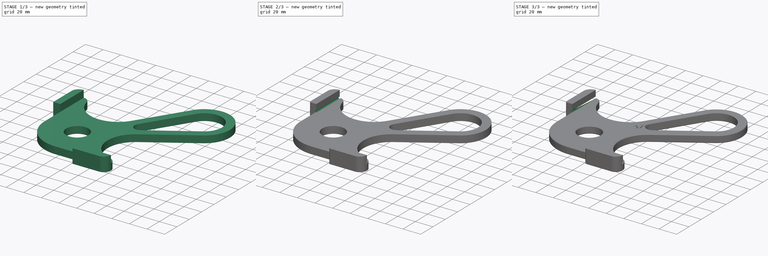
[diagram: build sequence overview — one tinted view per stage of 3, left to right]
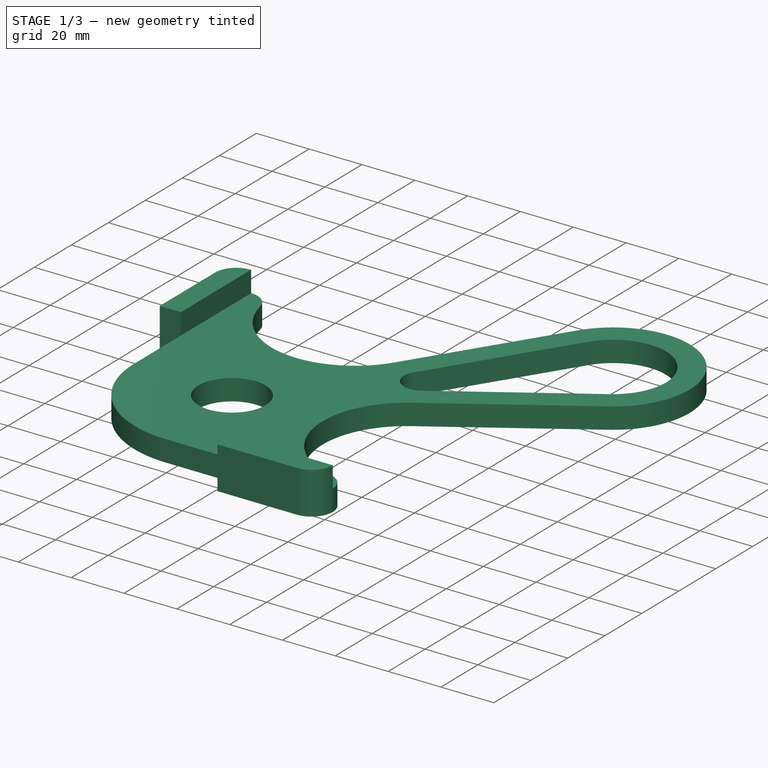
[diagram: stage 1 of 3 — iso view after this stage's code; geometry added in this stage tinted green]
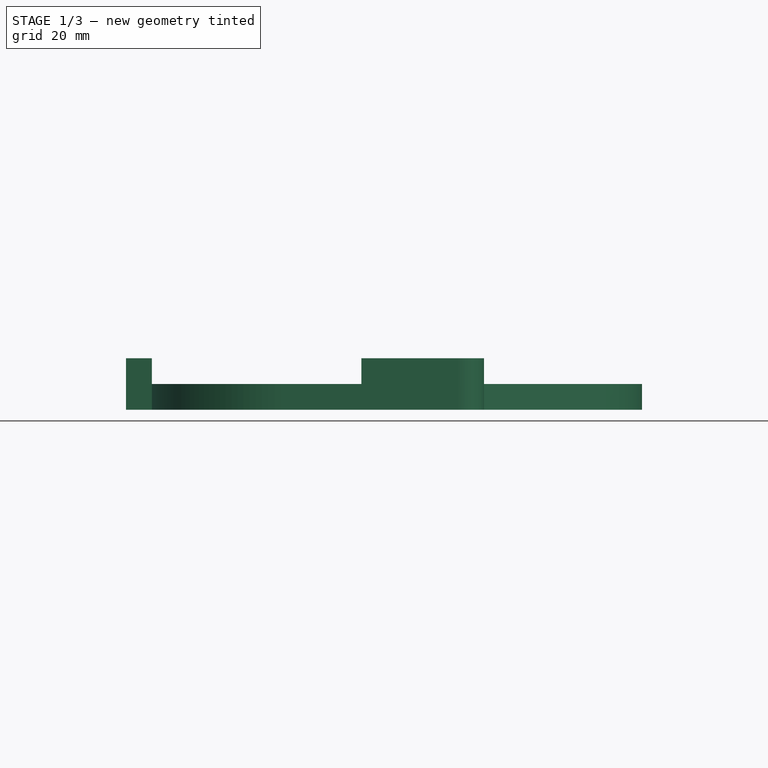
[diagram: stage 1 of 3 — front view after this stage's code; geometry added in this stage tinted green]
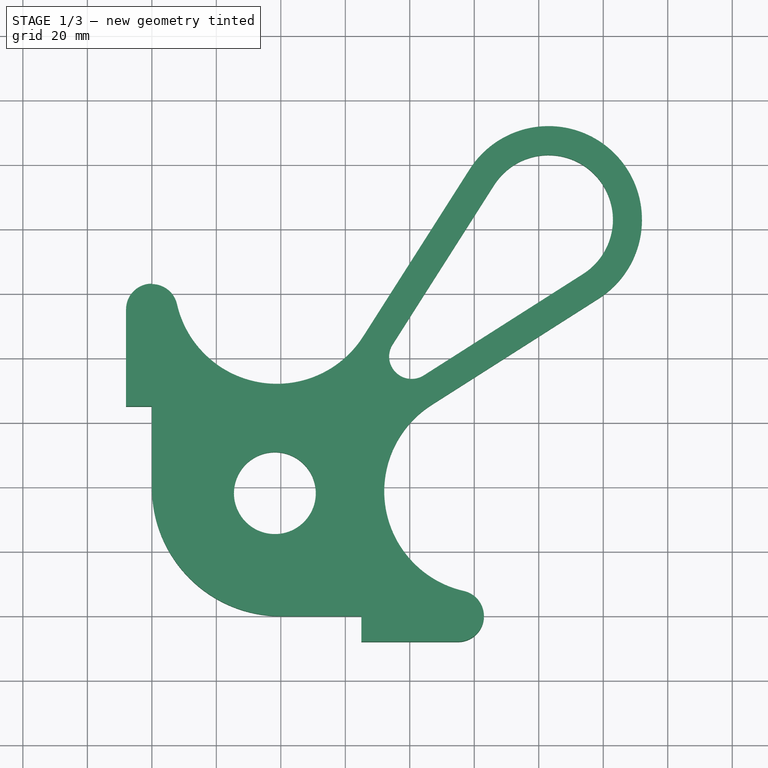
[diagram: stage 1 of 3 — top view after this stage's code; geometry added in this stage tinted green]
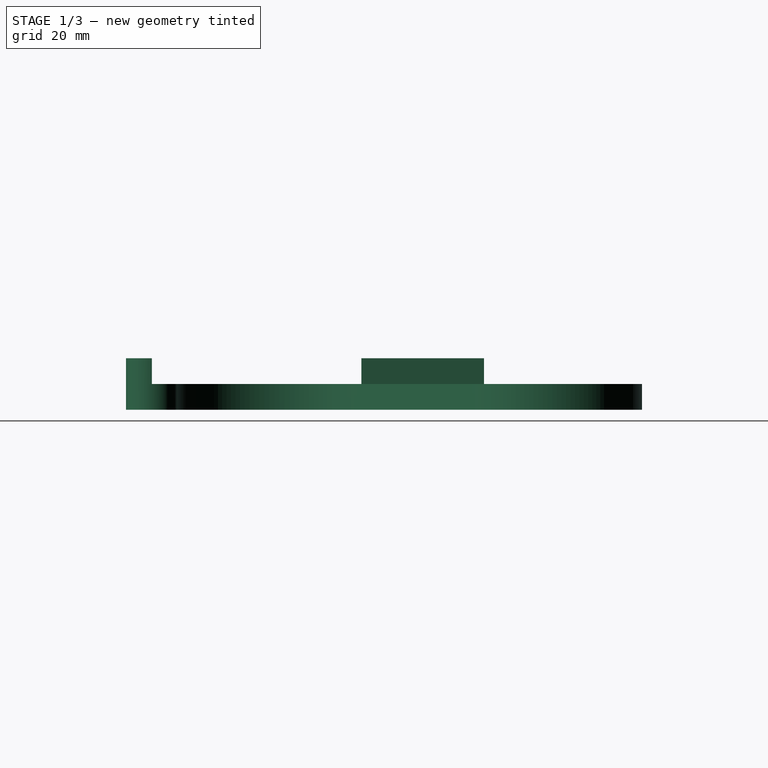
[diagram: stage 1 of 3 — right view after this stage's code; geometry added in this stage tinted green]
FCSTD DOCUMENT  (FreeCAD 1.0R39109 (Git))
Label: radius jig
License: All rights reserved
LicenseURL: http://en.wikipedia.org/wiki/All_rights_reserved
objects: Sketcher::SketchObject×3, PartDesign::Pad×2, PartDesign::Pocket×2, App::FeaturePython×1, Part::Feature×1, PartDesign::PolarPattern×1, PartDesign::Fillet×1, Part::Part2DObjectPython×1, PartDesign::Chamfer×1, PartDesign::Body×1
note: 29 computed .brp shape members not serialized (recipe doc carries the construction recipe); baked Part::Feature solids carry a one-line shape summary decoded from their .brp

FEATURE [Sketcher::SketchObject] Sketch
  ArcFitTolerance = 1e-06
  AttachmentSupport = -> [XY_Plane]
  FullyConstrained = true
  MakeInternals = false
  MapMode = 5
  expr: Constraints[15] = dd.EdgeReference
  expr: Constraints[36] = dd.LandingZone
  expr: Constraints[37] = dd.CornerRadius
  expr: Constraints[40] = dd.HandleLength
  expr: Constraints[41] = dd.EdgeReferenceRadius
  sketch-geometry (24):
    g0: LineSegment StartX=0 StartY=65 StartZ=0 EndX=0 EndY=40 EndZ=0
    g1: LineSegment StartX=40 StartY=0 StartZ=0 EndX=65 EndY=0 EndZ=0
    g2: ArcOfCircle CenterX=40 CenterY=40 CenterZ=0 NormalX=0 NormalY=0 NormalZ=1 AngleXU=0 Radius=40 StartAngle=3.14159 EndAngle=4.71239
    g3: GeomPoint [constr] X=0 Y=0 Z=0
    g4: LineSegment StartX=-8 StartY=65 StartZ=0 EndX=-8 EndY=95 EndZ=0
    g5: LineSegment StartX=65.5562 StartY=86.7694 StartZ=0 EndX=98.5492 EndY=138.585 EndZ=0
    g6: ArcOfCircle CenterX=123.01 CenterY=123.01 CenterZ=0 NormalX=0 NormalY=0 NormalZ=1 AngleXU=0 Radius=28.9982 StartAngle=5.27939 EndAngle=8.85778
    g7: LineSegment StartX=138.585 StartY=98.5492 StartZ=0 EndX=86.7694 EndY=65.5562 EndZ=0
    g8: LineSegment StartX=95 StartY=-8 StartZ=0 EndX=65 EndY=-8 EndZ=0
    g9: LineSegment StartX=65 StartY=-8 StartZ=0 EndX=65 EndY=0 EndZ=0
    g10: LineSegment [constr] StartX=38.1569 StartY=38.1569 StartZ=0 EndX=123.01 EndY=123.01 EndZ=0
    g11: ArcOfCircle CenterX=103.827 CenterY=38.7668 CenterZ=0 NormalX=0 NormalY=0 NormalZ=1 AngleXU=0 Radius=31.7591 StartAngle=2.1378 EndAngle=4.4885
    g12: ArcOfCircle CenterX=38.7668 CenterY=103.827 CenterZ=0 NormalX=0 NormalY=0 NormalZ=1 AngleXU=0 Radius=31.7591 StartAngle=3.36548 EndAngle=5.71619
    g13: ArcOfCircle CenterX=95 CenterY=2e-16 CenterZ=0 NormalX=0 NormalY=0 NormalZ=1 AngleXU=0 Radius=8 StartAngle=4.71239 EndAngle=7.6301
    g14: ArcOfCircle CenterX=-2e-16 CenterY=95 CenterZ=0 NormalX=0 NormalY=0 NormalZ=1 AngleXU=0 Radius=8 StartAngle=0.223886 EndAngle=3.14159
    g15: LineSegment StartX=-8 StartY=65 StartZ=0 EndX=0 EndY=65 EndZ=0
    g16: ArcOfCircle CenterX=123.01 CenterY=123.01 CenterZ=0 NormalX=0 NormalY=0 NormalZ=1 AngleXU=0 Radius=20 StartAngle=5.27939 EndAngle=8.85778
    g17: ArcOfCircle CenterX=80.5833 CenterY=80.5833 CenterZ=0 NormalX=0 NormalY=0 NormalZ=1 AngleXU=0 Radius=7 StartAngle=2.57459 EndAngle=5.27939
    g18: LineSegment StartX=133.752 StartY=106.139 StartZ=0 EndX=84.343 EndY=74.6786 EndZ=0
    g19: LineSegment StartX=106.139 StartY=133.752 StartZ=0 EndX=74.6786 EndY=84.343 EndZ=0
    g20: Circle CenterX=38.1569 CenterY=38.1569 CenterZ=0 NormalX=0 NormalY=0 NormalZ=1 AngleXU=0 Radius=12.7
    g21: LineSegment [constr] StartX=7.80034 StartY=96.7762 StartZ=0 EndX=123.01 EndY=123.01 EndZ=0
    g22: LineSegment [constr] StartX=65 StartY=0 StartZ=0 EndX=3.4e-15 EndY=65 EndZ=0
    g23: LineSegment [constr] StartX=38.1569 StartY=38.1569 StartZ=0 EndX=32.5 EndY=32.5 EndZ=0
  constraints (57):
    c: Vertical(g0)
    c: Horizontal(g1)
    c: PointOnObject(g3,g1)
    c: PointOnObject(g3,g0)
    c: Tangent(g1,g2) = -1.5708
    c: Tangent(g0,g2) = -1.5708
    c: Equal(g1,g0)
    c: Vertical(g4)
    c: Tangent(g5,g6) = 1.5708
    c: Tangent(g6,g7) = 1.5708
    c: Horizontal(g8)
    c: Coincident(g8,g9)
    c: Coincident(g9,g1)
    c: Vertical(g9)
    c: Equal(g4,g8)
    c: DistanceX(g8,g8) = 30
    c: Coincident(g10,g6)
    c: DistanceY(g9,g9) = 8
    c: Tangent(g12,g5) = -1.5708
    c: Symmetric(g5,g7,g10)
    c: Tangent(g14,g12) = 1.5708
    c: Tangent(g14,g4) = 1.5708
    c: Tangent(g13,g8) = 1.5708
    c: Coincident(g3,g-1)
    c: PointOnObject(g3,g10)
    c: Coincident(g15,g4)
    c: Coincident(g15,g0)
    c: Horizontal(g15)
    c: Tangent(g16,g18) = 1.5708
    c: Tangent(g16,g19) = -1.5708
    c: Tangent(g17,g18) = 1.5708
    c: Tangent(g17,g19) = -1.5708
    c: Coincident(g16,g6)
    c: Diameter(g17) = 14
    c: Symmetric(g10,g6,g17)
    c: Parallel(g18,g7)
    c: DistanceX(g1,g1) = 25
    c: Radius(g2) = 40
    c: Distance(g7,g5) = 30
    c: Diameter(g16) = 40
    c: Distance(g10) = 120
    c: Radius(g13) = 8
    c: Coincident(g20,g10)
    c: Diameter(g20) = 25.4
    c: Tangent(g7,g11) = -1.5708
    c: Tangent(g13,g11) = 1.5708
    c: Equal(g15,g9)
    c: Equal(g13,g14)
    c: Coincident(g21,g12)
    c: Coincident(g21,g6)
    c: PointOnObject(g12,g21)
    c: Coincident(g22,g1)
    c: Coincident(g22,g0)
    c: Perpendicular(g22,g10)
    c: Coincident(g23,g10)
    c: Symmetric(g22,g22,g23)
    c: Distance(g23) = 8
FEATURE [App::FeaturePython] dd  # WARN: FeaturePython — macro-defined, semantics opaque (R4)
  CornerRadius = 40
  DynamicData = Created with DynamicData (v2.68) workbench. | This is a simple container object built | for holding custom properties.
  EdgeReference = 30
  EdgeReferenceRadius = 8
  HandleLength = 120
  LandingZone = 25
  SizeText = 1/4"
  TextOffset = 69
  TextX = 45
  TextY = 41
  Thickness = 8
  expr: TextOffset = LandingZone + CornerRadius + 4
FEATURE [Part::Feature] Part__Feature  label="(Unsaved)"
  Placement = pos=(180,0,0) rot=(0,0,1;0rad)
  shape: bbox 150.5 x 150.5 x 14.41 mm, 168 faces (baked)
FEATURE [PartDesign::Pad] Pad
  Direction = (0,0,1)
  Length = 8
  Length2 = 10
  Profile = -> Sketch
  ReferenceAxis = -> Sketch [N_Axis]
  Refine = true
  Suppressed = false
  Type = 0
  expr: Length = dd.Thickness
FEATURE [Sketcher::SketchObject] Sketch001
  ArcFitTolerance = 1e-06
  AttachmentSupport = -> [Pad]
  ExternalGeometry = -> [Pad]
  FullyConstrained = true
  MakeInternals = false
  MapMode = 5
  Placement = pos=(0,0,8) rot=(0,0,1;0rad)
  expr: Constraints[17] = dd.EdgeReference + dd.EdgeReferenceRadius
  expr: Constraints[18] = dd.EdgeReference + dd.EdgeReferenceRadius
  sketch-geometry (8):
    g0: LineSegment StartX=0 StartY=65 StartZ=0 EndX=-8 EndY=65 EndZ=0
    g1: LineSegment StartX=-8 StartY=65 StartZ=0 EndX=-8 EndY=95 EndZ=0
    g2: ArcOfCircle CenterX=6e-15 CenterY=95 CenterZ=0 NormalX=0 NormalY=0 NormalZ=1 AngleXU=0 Radius=8 StartAngle=1.5708 EndAngle=3.14159
    g3: LineSegment StartX=0 StartY=103 StartZ=0 EndX=0 EndY=65 EndZ=0
    g4: LineSegment StartX=65 StartY=0 StartZ=0 EndX=65 EndY=-8 EndZ=0
    g5: LineSegment StartX=65 StartY=-8 StartZ=0 EndX=95 EndY=-8 EndZ=0
    g6: ArcOfCircle CenterX=95 CenterY=-7.3e-15 CenterZ=0 NormalX=0 NormalY=0 NormalZ=1 AngleXU=0 Radius=8 StartAngle=4.71239 EndAngle=6.28319
    g7: LineSegment StartX=103 StartY=0 StartZ=0 EndX=65 EndY=0 EndZ=0
  constraints (19):
    c: Coincident(g-5,g0)
    c: Coincident(g0,g-6)
    c: Coincident(g0,g1)
    c: Coincident(g1,g-8)
    c: Tangent(g1,g2) = 1.5708
    c: Coincident(g2,g3)
    c: Coincident(g3,g0)
    c: Vertical(g3)
    c: Vertical(g4)
    c: Coincident(g4,g5)
    c: Horizontal(g5)
    c: Tangent(g5,g6) = -1.5708
    c: Coincident(g6,g7)
    c: Coincident(g7,g4)
    c: Horizontal(g7)
    c: Coincident(g4,g-4)
    c: Coincident(g5,g-7)
    c: DistanceX(g7,g7) = 38
    c: DistanceY(g3,g3) = 38
FEATURE [PartDesign::Pad] Pad001
  BaseFeature = -> Pad
  Direction = (0,0,1)
  Length = 8
  Length2 = 10
  Profile = -> Sketch001
  ReferenceAxis = -> Sketch001 [N_Axis]
  Refine = true
  Suppressed = false
  Type = 0
  expr: Length = dd.Thickness
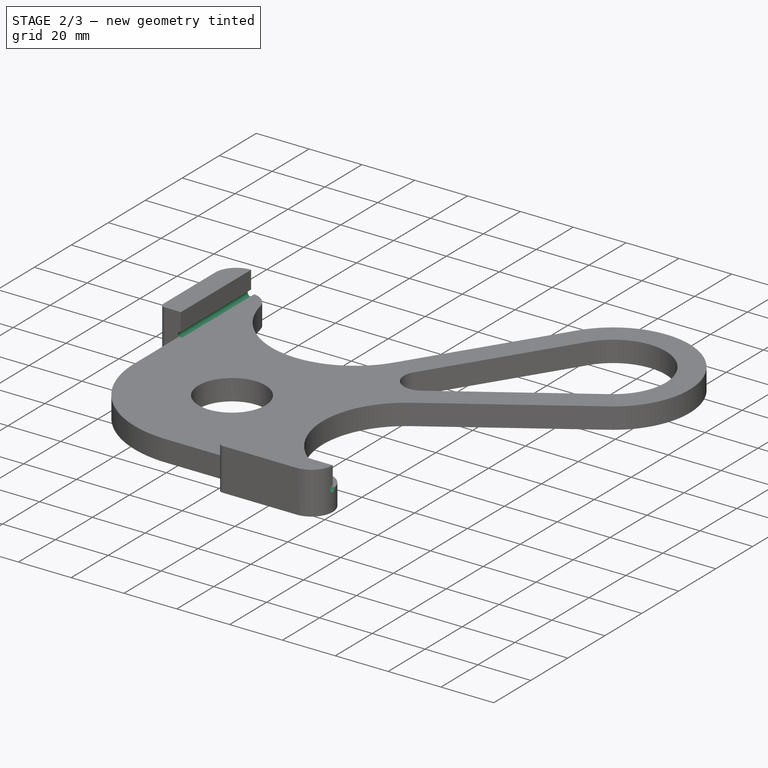
[diagram: stage 2 of 3 — iso view after this stage's code; geometry added in this stage tinted green]
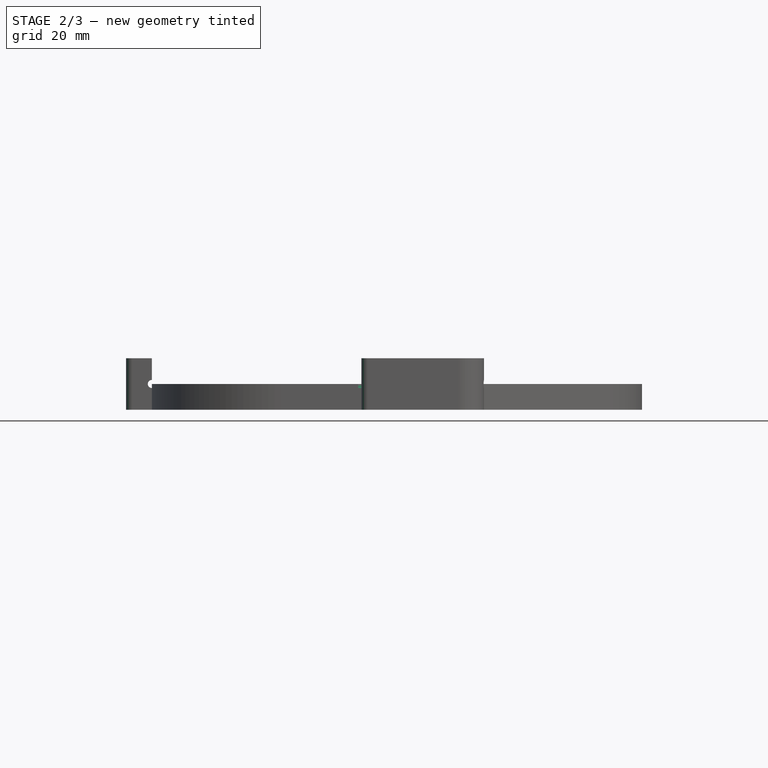
[diagram: stage 2 of 3 — front view after this stage's code; geometry added in this stage tinted green]
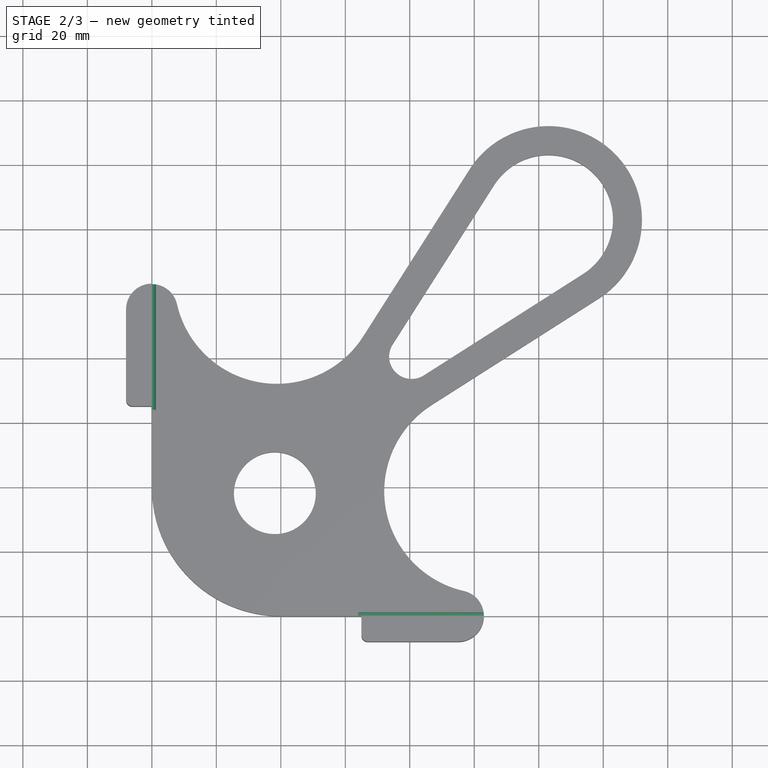
[diagram: stage 2 of 3 — top view after this stage's code; geometry added in this stage tinted green]
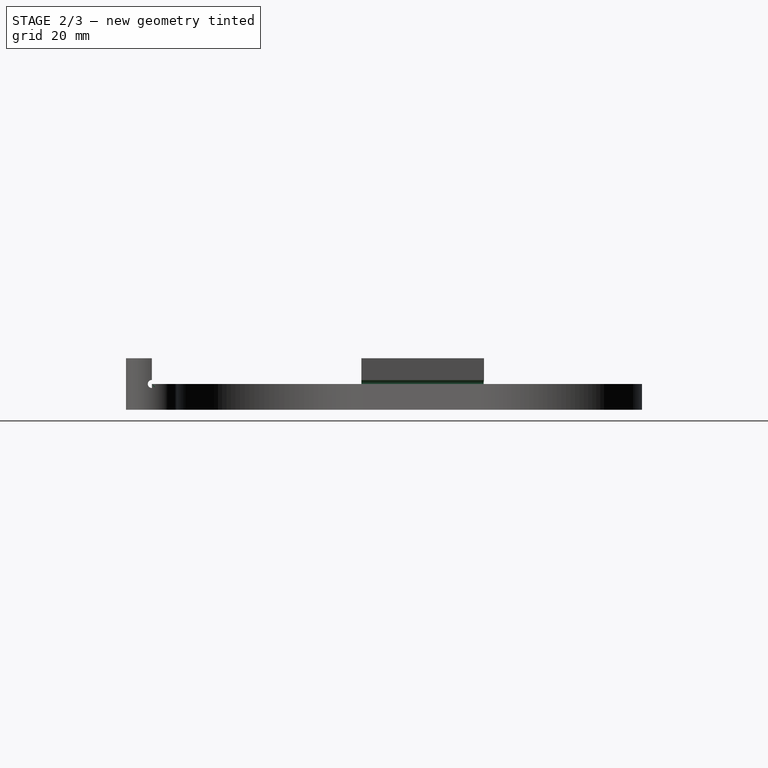
[diagram: stage 2 of 3 — right view after this stage's code; geometry added in this stage tinted green]
FEATURE [Sketcher::SketchObject] Sketch002
  ArcFitTolerance = 1e-06
  AttachmentOffset = pos=(0,0,1) rot=(0,0,1;0rad)
  AttachmentSupport = -> [Pad001]
  ExternalGeometry = -> [Pad001]
  FullyConstrained = true
  MakeInternals = false
  MapMode = 5
  Placement = pos=(64,0,0) rot=(0.57735,-0.57735,-0.57735;2.0944rad)
  sketch-geometry (1):
    g0: Circle CenterX=0 CenterY=8 CenterZ=0 NormalX=0 NormalY=0 NormalZ=1 AngleXU=0 Radius=1.25
  constraints (2):
    c: Coincident(g0,g-3)
    c: Diameter(g0) = 2.5
FEATURE [PartDesign::Pocket] Pocket
  BaseFeature = -> Pad001
  Direction = (1,0,0)
  Length = 45
  Length2 = 5
  Profile = -> Sketch002
  ReferenceAxis = -> Sketch002 [N_Axis]
  Refine = true
  Suppressed = false
  Type = 0
FEATURE [PartDesign::PolarPattern] PolarPattern
  Angle = 90
  Axis = -> Z_Axis
  BaseFeature = -> Pocket
  Mode = 0
  Occurrences = 2
  Offset = 120
  Originals = -> [Pocket]
  Refine = true
  Suppressed = false
  TransformMode = 0
FEATURE [PartDesign::Fillet] Fillet
  Base = -> PolarPattern [Edge48,Edge58]
  BaseFeature = -> PolarPattern
  Radius = 2
  Refine = true
  SupportTransform = false
  Suppressed = false
  UseAllEdges = false
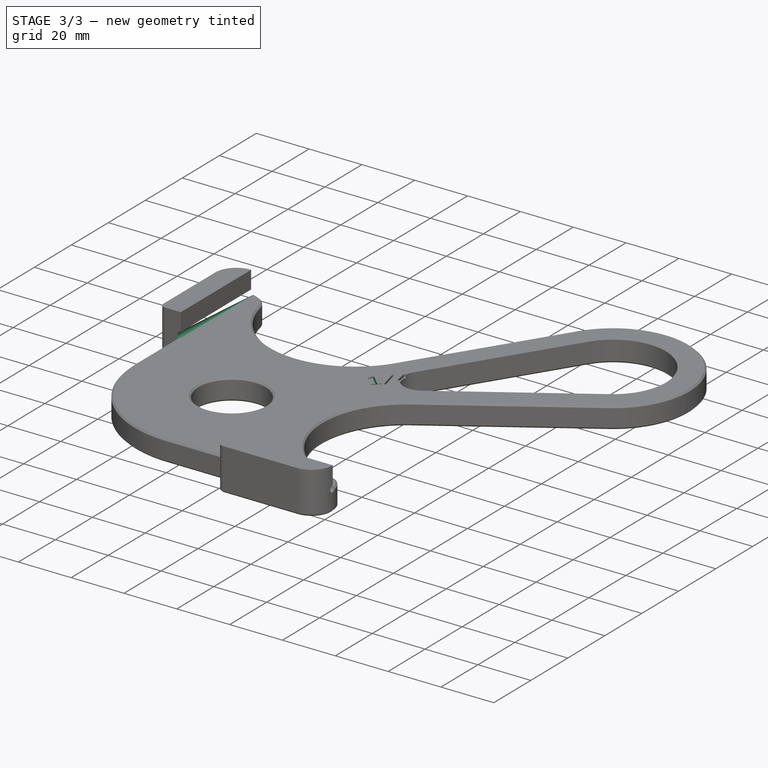
[diagram: stage 3 of 3 — iso view after this stage's code; geometry added in this stage tinted green]
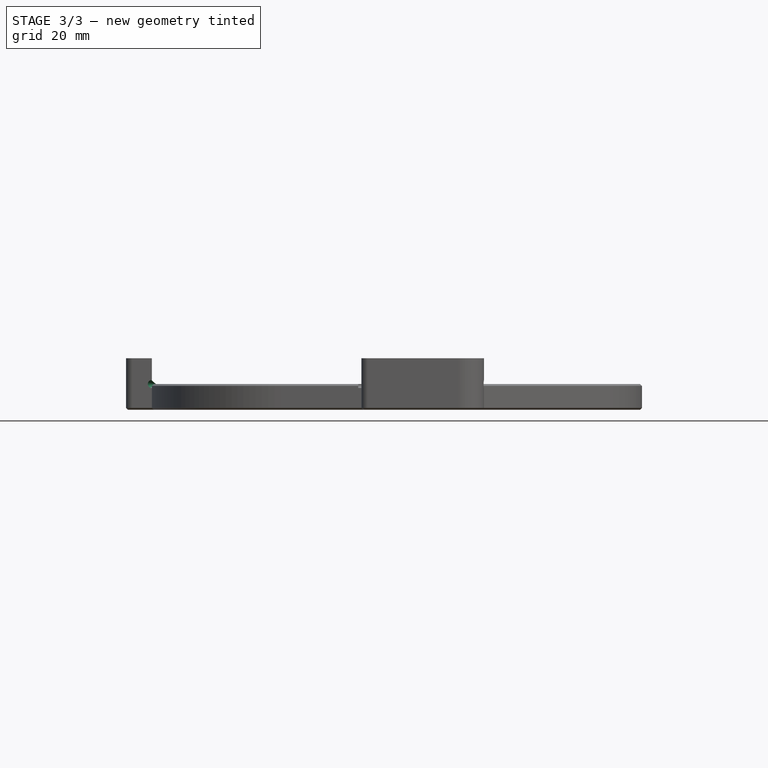
[diagram: stage 3 of 3 — front view after this stage's code; geometry added in this stage tinted green]
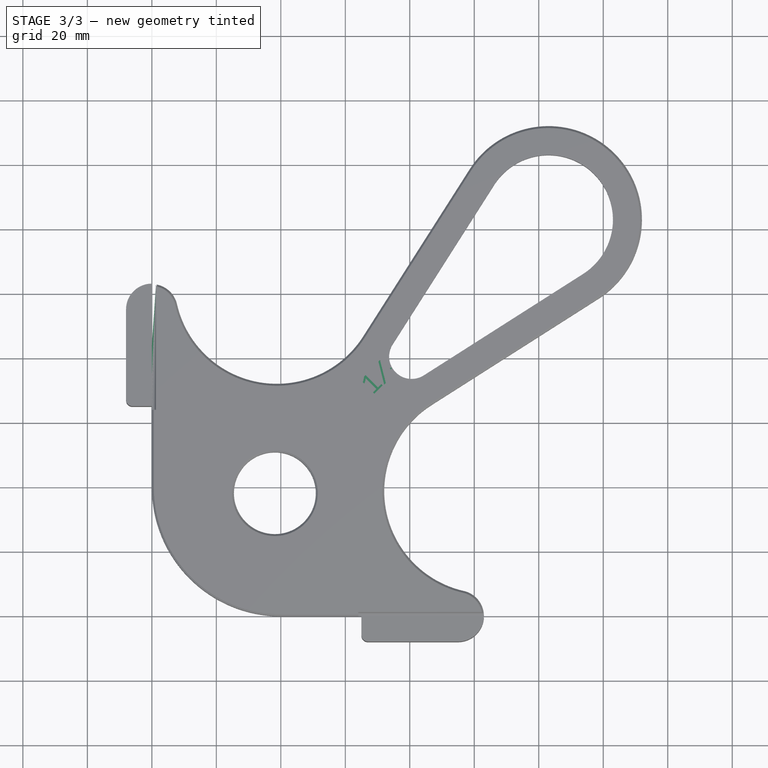
[diagram: stage 3 of 3 — top view after this stage's code; geometry added in this stage tinted green]
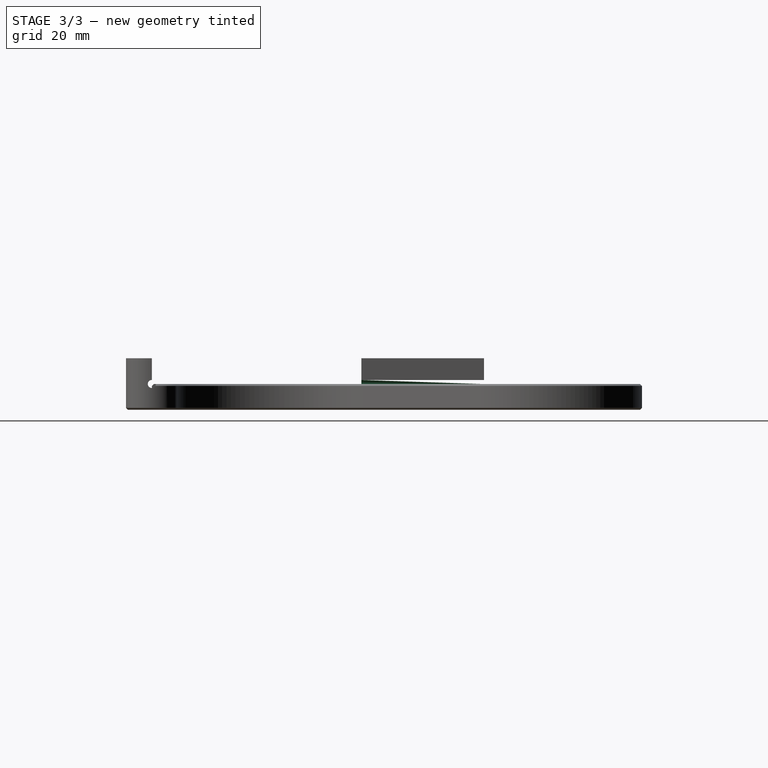
[diagram: stage 3 of 3 — right view after this stage's code; geometry added in this stage tinted green]
FEATURE [Part::Part2DObjectPython] ShapeString  # Draft 2D object (typed FeaturePython)
  AttachmentOffset = pos=(20,3,0) rot=(0,0,1;0rad)
  FontFile = /System/Library/Fonts/Monaco.ttf
  Fuse = false
  Justification = 6
  JustificationReference = 0
  KeepLeftMargin = false
  MakeFace = true
  MapMode = 5
  ObliqueAngle = 0
  Placement = pos=(69,69,8) rot=(0,0,1;0.785398rad)
  ScaleToSize = true
  Size = 6
  String = 1/4"
  Tracking = 0
  expr: .Placement.Base.x = dd.TextOffset
  expr: .Placement.Base.y = dd.TextOffset
  expr: String = dd.SizeText[0]
FEATURE [PartDesign::Pocket] Pocket001
  BaseFeature = -> Fillet
  Direction = (0,0,-1)
  Length = 1
  Length2 = 5
  Profile = -> ShapeString
  ReferenceAxis = -> ShapeString [N_Axis]
  Refine = true
  Suppressed = false
  Type = 0
FEATURE [PartDesign::Chamfer] Chamfer
  Angle = 45
  Base = -> Pocket001 [Edge45,Edge88,?Edge77,Edge62,Face1]
  BaseFeature = -> Pocket001
  ChamferType = 0
  FlipDirection = false
  Refine = true
  Size = 0.6
  Size2 = 1
  SupportTransform = false
  Suppressed = false
  UseAllEdges = false
FEATURE [PartDesign::Body] Body
  AllowCompound = false
  Group = -> [Sketch,Pad,Sketch001,Pad001,Sketch002,Pocket,PolarPattern,Fillet,ShapeString,Pocket001,Chamfer]
  Origin = -> Origin
  Tip = -> Chamfer
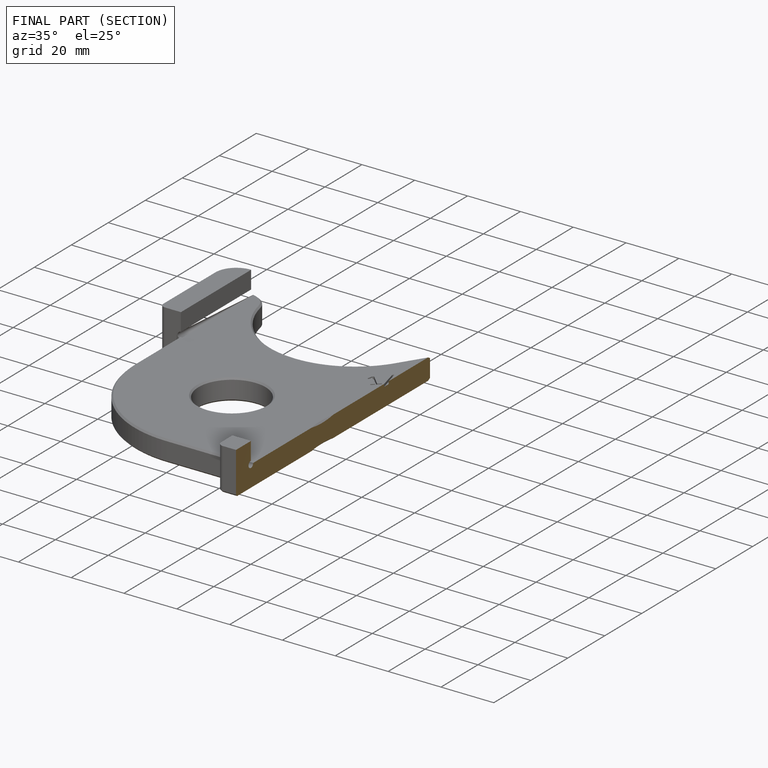
[diagram: finished part — half-section view (interior)]
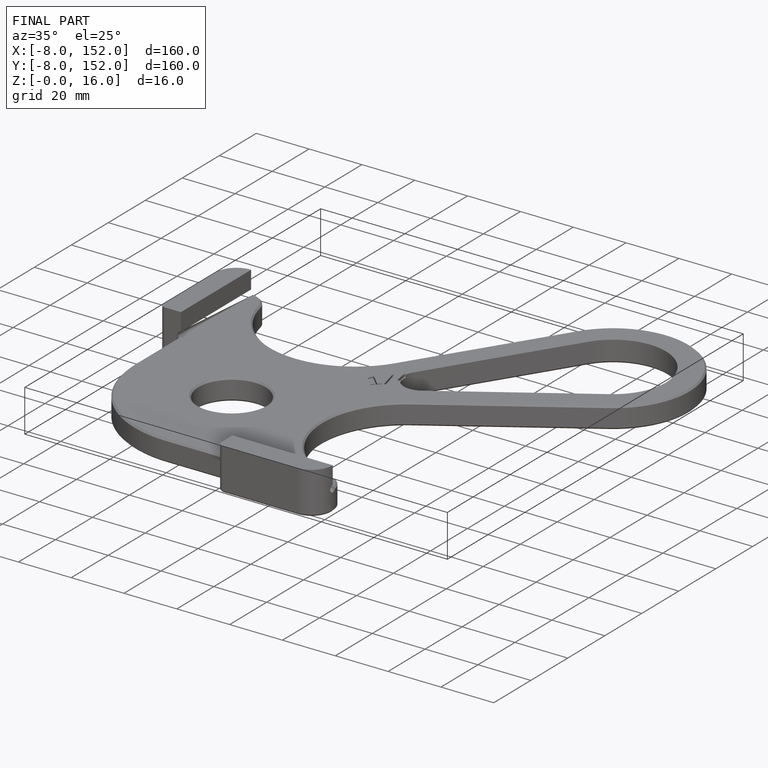
[diagram: finished part — iso view with bounding-box wireframe]
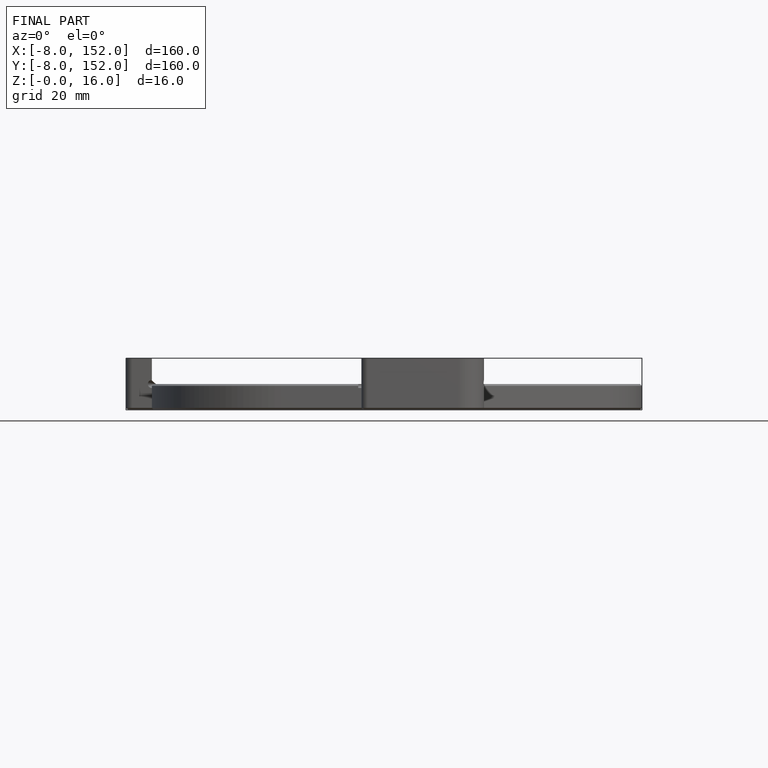
[diagram: finished part — front view with bounding-box wireframe]
